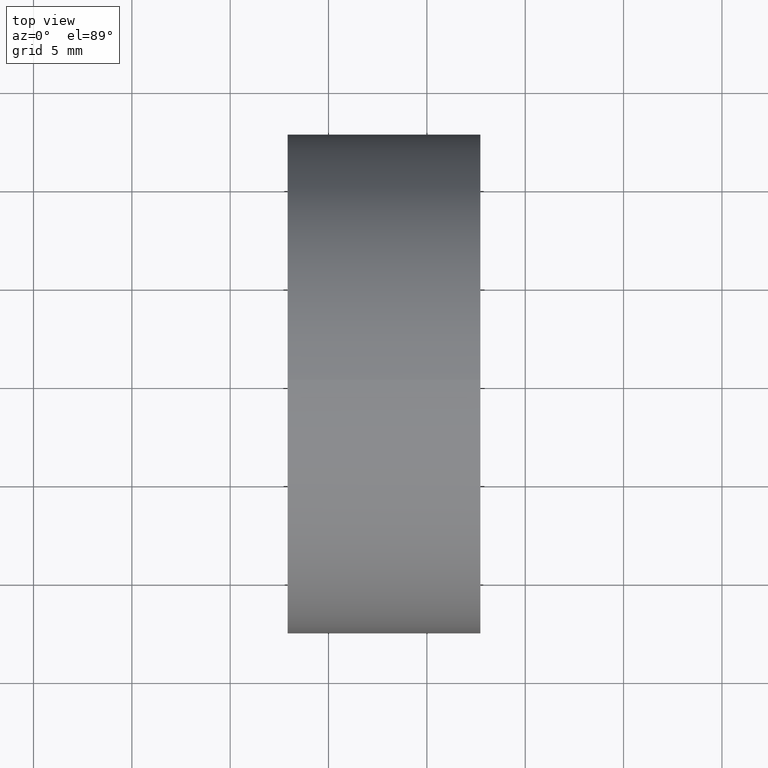
[diagram: clean part render]
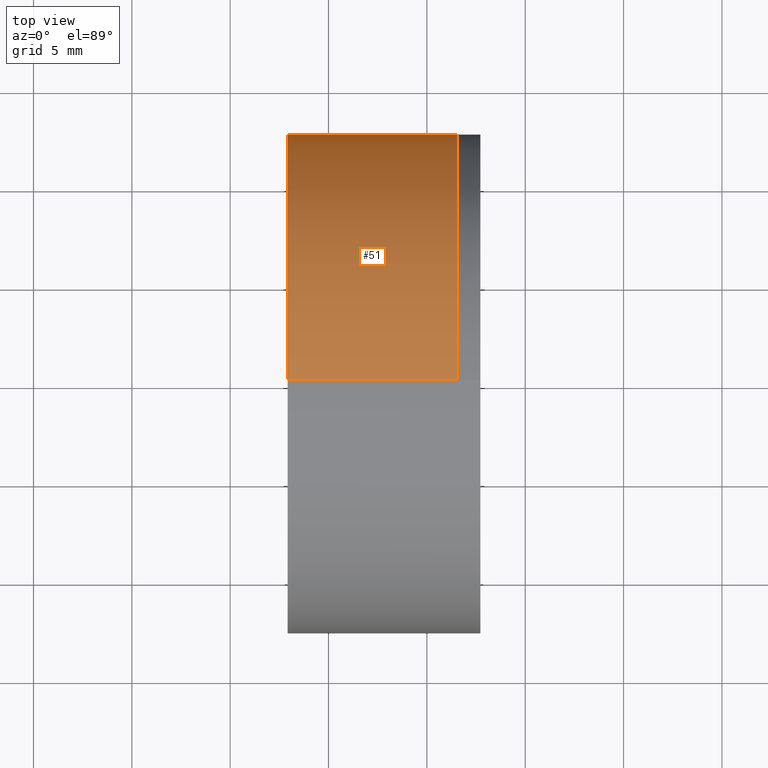
[diagram: same view with one face highlighted and labeled with its STEP entity id]
A machine part, top view. The second image highlights one B-rep face of the part: STEP entity #51.
In plain terms, the highlighted cylindrical surface (partial cylindrical patch) has radius 12.7 mm, axis along (-1, -0, 0).
Its self-contained STEP definition (entity closure, byte-faithful):
#3 = VECTOR ( 'NONE', #318, 1000.000000000000000 ) ;
#13 = AXIS2_PLACEMENT_3D ( 'NONE', #54, #158, #347 ) ;
#20 = CARTESIAN_POINT ( 'NONE',  ( 152.9182642356440200, 0.0000000000000000000, -5.253961766177316900E-014 ) ) ;
#24 = VERTEX_POINT ( 'NONE', #34 ) ;
#25 = VERTEX_POINT ( 'NONE', #46 ) ;
#27 = CARTESIAN_POINT ( 'NONE',  ( -185.2744740506581700, 0.0000000000000000000, 12.70000000000001400 ) ) ;
#34 = CARTESIAN_POINT ( 'NONE',  ( 161.5418237581144500, 0.0000000000000000000, 12.69999999999993900 ) ) ;
#46 = CARTESIAN_POINT ( 'NONE',  ( 152.9182642356440200, 0.0000000000000000000, 12.69999999999993700 ) ) ;
#48 = VERTEX_POINT ( 'NONE', #298 ) ;
#51 = ADVANCED_FACE ( 'NONE', ( #322 ), #235, .T. ) ;
#54 = CARTESIAN_POINT ( 'NONE',  ( -185.2744740506581700, 0.0000000000000000000, 2.052032605930108700E-014 ) ) ;
#55 = VERTEX_POINT ( 'NONE', #249 ) ;
#71 = DIRECTION ( 'NONE',  ( 0.0000000000000000000, 0.0000000000000000000, 1.000000000000000000 ) ) ;
#73 = CIRCLE ( 'NONE', #106, 12.69999999999999200 ) ;
#82 = VECTOR ( 'NONE', #305, 1000.000000000000000 ) ;
#87 = CIRCLE ( 'NONE', #130, 12.69999999999999000 ) ;
#106 = AXIS2_PLACEMENT_3D ( 'NONE', #342, #194, #223 ) ;
#110 = LINE ( 'NONE', #27, #3 ) ;
#117 = DIRECTION ( 'NONE',  ( -1.000000000000000000, -0.0000000000000000000, 2.160304922313981000E-016 ) ) ;
#130 = AXIS2_PLACEMENT_3D ( 'NONE', #20, #117, #71 ) ;
#135 = ORIENTED_EDGE ( 'NONE', *, *, #225, .T. ) ;
#158 = DIRECTION ( 'NONE',  ( -1.000000000000000000, -0.0000000000000000000, 2.160304922313981000E-016 ) ) ;
#176 = CARTESIAN_POINT ( 'NONE',  ( -185.2744740506581700, 1.555301434917137800E-015, -12.69999999999997100 ) ) ;
#194 = DIRECTION ( 'NONE',  ( -1.000000000000000000, -0.0000000000000000000, 2.160304922313981000E-016 ) ) ;
#223 = DIRECTION ( 'NONE',  ( 0.0000000000000000000, 0.0000000000000000000, 1.000000000000000000 ) ) ;
#225 = EDGE_CURVE ( 'NONE', #48, #55, #261, .T. ) ;
#228 = EDGE_CURVE ( 'NONE', #24, #25, #110, .T. ) ;
#235 = CYLINDRICAL_SURFACE ( 'NONE', #13, 12.69999999999999200 ) ;
#249 = CARTESIAN_POINT ( 'NONE',  ( 152.9182642356440200, 1.555301434917137200E-015, -12.70000000000005400 ) ) ;
#251 = EDGE_CURVE ( 'NONE', #24, #48, #73, .T. ) ;
#252 = EDGE_LOOP ( 'NONE', ( #254, #135, #341, #302 ) ) ;
#254 = ORIENTED_EDGE ( 'NONE', *, *, #251, .T. ) ;
#261 = LINE ( 'NONE', #176, #82 ) ;
#295 = EDGE_CURVE ( 'NONE', #25, #55, #87, .T. ) ;
#298 = CARTESIAN_POINT ( 'NONE',  ( 161.5418237581144500, 1.555301434917138000E-015, -12.70000000000004700 ) ) ;
#302 = ORIENTED_EDGE ( 'NONE', *, *, #228, .F. ) ;
#305 = DIRECTION ( 'NONE',  ( -1.000000000000000000, -0.0000000000000000000, 2.160304922313981000E-016 ) ) ;
#318 = DIRECTION ( 'NONE',  ( -1.000000000000000000, -0.0000000000000000000, 2.160304922313981000E-016 ) ) ;
#322 = FACE_OUTER_BOUND ( 'NONE', #252, .T. ) ;
#341 = ORIENTED_EDGE ( 'NONE', *, *, #295, .F. ) ;
#342 = CARTESIAN_POINT ( 'NONE',  ( 161.5418237581144500, 0.0000000000000000000, -5.440256947019921600E-014 ) ) ;
#347 = DIRECTION ( 'NONE',  ( 0.0000000000000000000, 0.0000000000000000000, 1.000000000000000000 ) ) ;